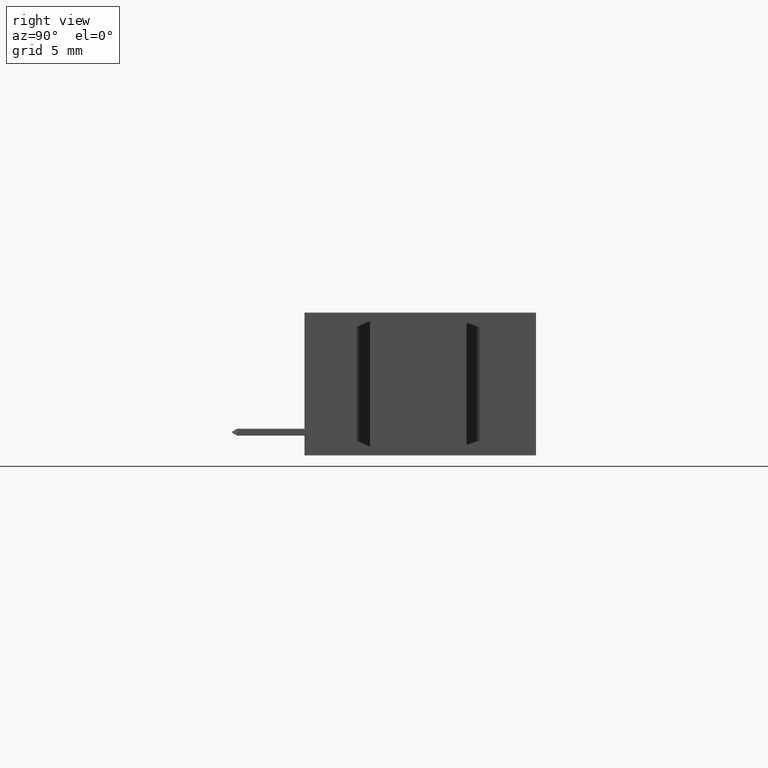
[diagram: clean part render]
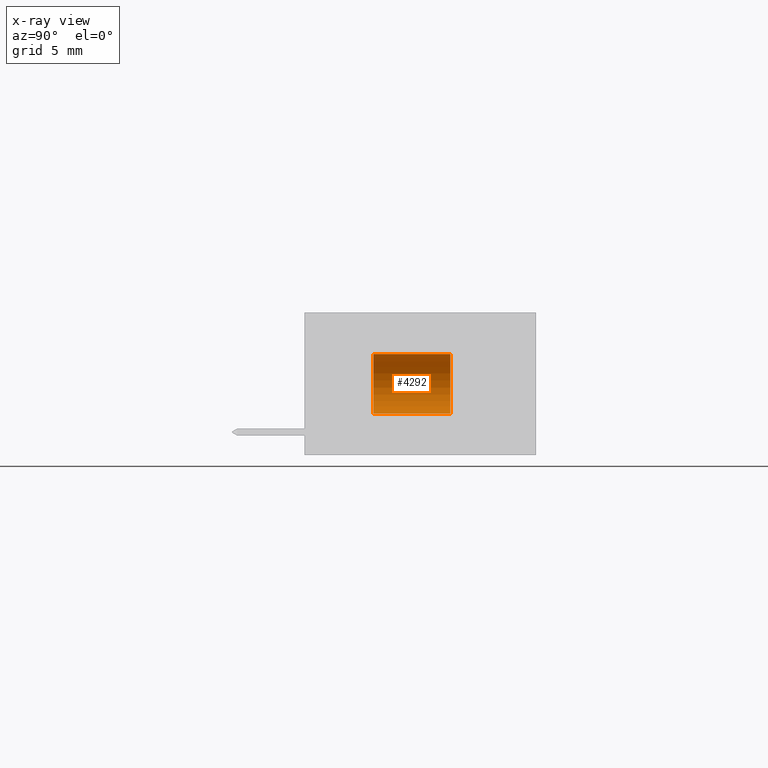
[diagram: x-ray — body ghosted, one internal face saturated and labeled with its STEP entity id]
A machine part, right view, then the same camera in x-ray: the body is ghosted and one INTERNAL B-rep face — a face not visible from any outside direction — is saturated and labeled: STEP entity #4292.
In plain terms, the highlighted cylindrical surface (edge-blend (fillet) strip) has radius 1.9685 mm, axis along (0, 1, 0).
Its self-contained STEP definition (entity closure, byte-faithful):
#303 = CARTESIAN_POINT ( 'NONE',  ( 0.0000000000000000000, 0.2400000000000000466, -0.07749999999999999944 ) ) ;
#1389 = DIRECTION ( 'NONE',  ( 0.0000000000000000000, 1.000000000000000000, 0.0000000000000000000 ) ) ;
#1864 = ORIENTED_EDGE ( 'NONE', *, *, #5201, .T. ) ;
#2037 = LINE ( 'NONE', #5301, #9919 ) ;
#2099 = CYLINDRICAL_SURFACE ( 'NONE', #2242, 0.07750000000000005496 ) ;
#2153 = FACE_OUTER_BOUND ( 'NONE', #6160, .T. ) ;
#2242 = AXIS2_PLACEMENT_3D ( 'NONE', #9315, #5415, #7768 ) ;
#2287 = DIRECTION ( 'NONE',  ( 0.0000000000000000000, -1.000000000000000000, 0.0000000000000000000 ) ) ;
#2500 = VERTEX_POINT ( 'NONE', #7960 ) ;
#3155 = DIRECTION ( 'NONE',  ( 0.0000000000000000000, 1.000000000000000000, 0.0000000000000000000 ) ) ;
#3942 = LINE ( 'NONE', #6983, #9401 ) ;
#4292 = ADVANCED_FACE ( 'NONE', ( #2153 ), #2099, .T. ) ;
#4749 = AXIS2_PLACEMENT_3D ( 'NONE', #4794, #1389, #6192 ) ;
#4760 = EDGE_CURVE ( 'NONE', #9111, #5323, #2037, .T. ) ;
#4794 = CARTESIAN_POINT ( 'NONE',  ( 0.0000000000000000000, 0.03999999999999998002, 0.0000000000000000000 ) ) ;
#4850 = EDGE_CURVE ( 'NONE', #7951, #9111, #7556, .T. ) ;
#5201 = EDGE_CURVE ( 'NONE', #2500, #5323, #9366, .T. ) ;
#5301 = CARTESIAN_POINT ( 'NONE',  ( 0.0000000000000000000, 0.2400000000000000466, -0.07750000000000005496 ) ) ;
#5323 = VERTEX_POINT ( 'NONE', #7410 ) ;
#5415 = DIRECTION ( 'NONE',  ( 0.0000000000000000000, -1.000000000000000000, 0.0000000000000000000 ) ) ;
#5456 = ORIENTED_EDGE ( 'NONE', *, *, #4760, .F. ) ;
#5652 = DIRECTION ( 'NONE',  ( 0.0000000000000000000, 0.0000000000000000000, 1.000000000000000000 ) ) ;
#6152 = EDGE_CURVE ( 'NONE', #7951, #2500, #3942, .T. ) ;
#6160 = EDGE_LOOP ( 'NONE', ( #8325, #8618, #1864, #5456 ) ) ;
#6192 = DIRECTION ( 'NONE',  ( 0.0000000000000000000, 0.0000000000000000000, 1.000000000000000000 ) ) ;
#6859 = AXIS2_PLACEMENT_3D ( 'NONE', #9704, #3155, #5652 ) ;
#6983 = CARTESIAN_POINT ( 'NONE',  ( 9.491012693391994073E-18, 0.2400000000000000466, 0.07750000000000005496 ) ) ;
#7410 = CARTESIAN_POINT ( 'NONE',  ( 0.0000000000000000000, 0.03999999999999998002, -0.07749999999999999944 ) ) ;
#7556 = CIRCLE ( 'NONE', #6859, 0.07750000000000005496 ) ;
#7768 = DIRECTION ( 'NONE',  ( 0.0000000000000000000, 0.0000000000000000000, -1.000000000000000000 ) ) ;
#7951 = VERTEX_POINT ( 'NONE', #9133 ) ;
#7960 = CARTESIAN_POINT ( 'NONE',  ( 9.491012693391986370E-18, 0.03999999999999998002, 0.07749999999999999944 ) ) ;
#8325 = ORIENTED_EDGE ( 'NONE', *, *, #4850, .F. ) ;
#8618 = ORIENTED_EDGE ( 'NONE', *, *, #6152, .T. ) ;
#9111 = VERTEX_POINT ( 'NONE', #303 ) ;
#9133 = CARTESIAN_POINT ( 'NONE',  ( 9.491012693391986370E-18, 0.2400000000000000466, 0.07749999999999999944 ) ) ;
#9315 = CARTESIAN_POINT ( 'NONE',  ( 0.0000000000000000000, 0.2400000000000000466, 0.0000000000000000000 ) ) ;
#9366 = CIRCLE ( 'NONE', #4749, 0.07750000000000005496 ) ;
#9401 = VECTOR ( 'NONE', #2287, 39.37007874015748143 ) ;
#9408 = DIRECTION ( 'NONE',  ( 0.0000000000000000000, -1.000000000000000000, 0.0000000000000000000 ) ) ;
#9704 = CARTESIAN_POINT ( 'NONE',  ( 0.0000000000000000000, 0.2400000000000000466, 0.0000000000000000000 ) ) ;
#9919 = VECTOR ( 'NONE', #9408, 39.37007874015748143 ) ;